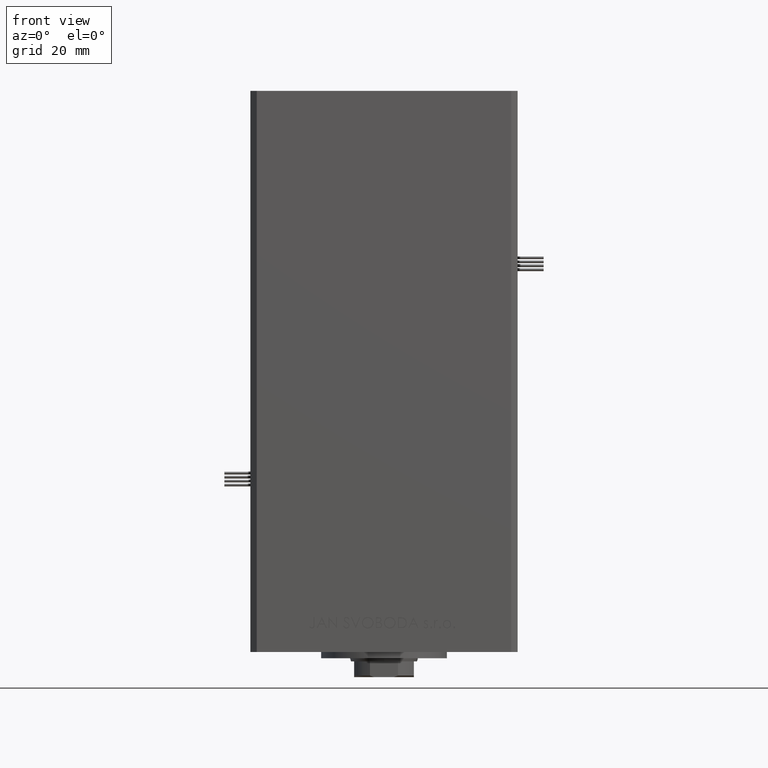
[diagram: clean part render]
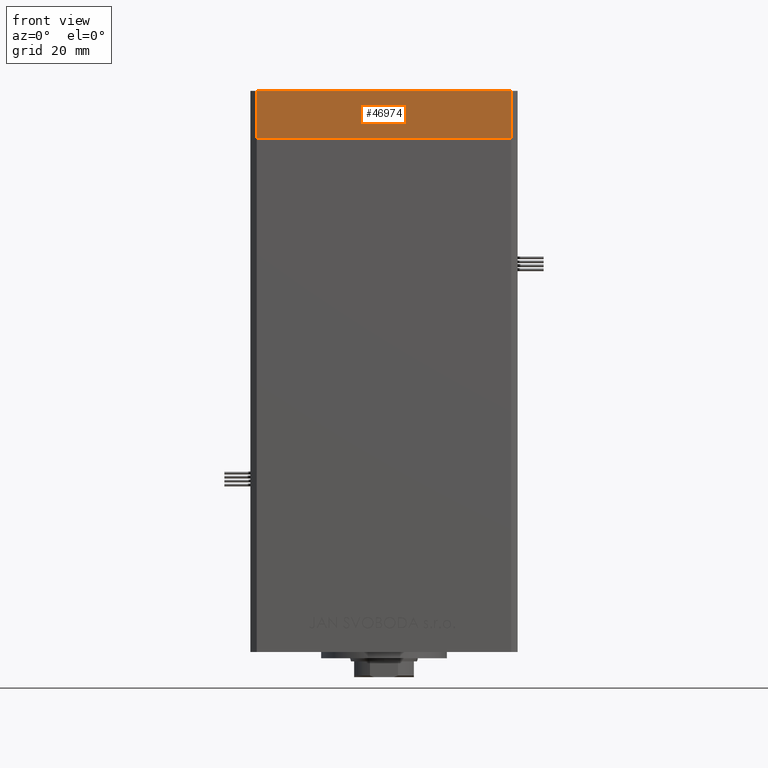
[diagram: same view with one face highlighted and labeled with its STEP entity id]
A machine part, front view. The second image highlights one B-rep face of the part: STEP entity #46974.
In plain terms, the highlighted planar face has unit normal (0, -1, 0).
Its self-contained STEP definition (entity closure, byte-faithful):
#2114 = LINE ( 'NONE', #48671, #10992 ) ;
#2366 = VERTEX_POINT ( 'NONE', #6710 ) ;
#4739 = CARTESIAN_POINT ( 'NONE',  ( 40.50000000000000000, -37.50000000000000711, 0.000000000000000000 ) ) ;
#6710 = CARTESIAN_POINT ( 'NONE',  ( -40.49999999999999289, -37.50000000000002132, -15.00000000000000000 ) ) ;
#7722 = VECTOR ( 'NONE', #39262, 1000.000000000000000 ) ;
#10992 = VECTOR ( 'NONE', #12855, 1000.000000000000000 ) ;
#11541 = LINE ( 'NONE', #23305, #7722 ) ;
#12855 = DIRECTION ( 'NONE',  ( 0.000000000000000000, 0.000000000000000000, 1.000000000000000000 ) ) ;
#14141 = ORIENTED_EDGE ( 'NONE', *, *, #19444, .F. ) ;
#16214 = EDGE_CURVE ( 'NONE', #32908, #38269, #2114, .T. ) ;
#17043 = CARTESIAN_POINT ( 'NONE',  ( -40.49999999999999289, -37.50000000000002132, -15.00000000000000000 ) ) ;
#17068 = DIRECTION ( 'NONE',  ( 0.000000000000000000, 0.000000000000000000, 1.000000000000000000 ) ) ;
#19444 = EDGE_CURVE ( 'NONE', #44101, #38269, #11541, .T. ) ;
#20969 = LINE ( 'NONE', #17043, #50100 ) ;
#22182 = EDGE_CURVE ( 'NONE', #2366, #44101, #30787, .T. ) ;
#23305 = CARTESIAN_POINT ( 'NONE',  ( -40.49999999999999289, -37.50000000000002132, 0.000000000000000000 ) ) ;
#25071 = ORIENTED_EDGE ( 'NONE', *, *, #39882, .T. ) ;
#26933 = CARTESIAN_POINT ( 'NONE',  ( -40.49999999999999289, -37.50000000000002132, 0.000000000000000000 ) ) ;
#30787 = LINE ( 'NONE', #46702, #35255 ) ;
#32908 = VERTEX_POINT ( 'NONE', #35682 ) ;
#35255 = VECTOR ( 'NONE', #17068, 1000.000000000000000 ) ;
#35342 = PLANE ( 'NONE',  #47692 ) ;
#35682 = CARTESIAN_POINT ( 'NONE',  ( 40.50000000000000000, -37.50000000000000711, -15.00000000000000000 ) ) ;
#36422 = ORIENTED_EDGE ( 'NONE', *, *, #22182, .F. ) ;
#38269 = VERTEX_POINT ( 'NONE', #4739 ) ;
#38990 = DIRECTION ( 'NONE',  ( 1.000000000000000000, 1.713307136767217096E-16, 0.000000000000000000 ) ) ;
#39262 = DIRECTION ( 'NONE',  ( 1.000000000000000000, 1.713307136767217096E-16, 0.000000000000000000 ) ) ;
#39882 = EDGE_CURVE ( 'NONE', #2366, #32908, #20969, .T. ) ;
#42910 = FACE_OUTER_BOUND ( 'NONE', #45917, .T. ) ;
#43417 = DIRECTION ( 'NONE',  ( 1.713307136767217096E-16, -1.000000000000000000, 0.000000000000000000 ) ) ;
#44101 = VERTEX_POINT ( 'NONE', #26933 ) ;
#45008 = DIRECTION ( 'NONE',  ( 1.000000000000000000, 1.713307136767217096E-16, 0.000000000000000000 ) ) ;
#45917 = EDGE_LOOP ( 'NONE', ( #14141, #36422, #25071, #51377 ) ) ;
#46702 = CARTESIAN_POINT ( 'NONE',  ( -40.49999999999999289, -37.50000000000002132, -15.00000000000000000 ) ) ;
#46974 = ADVANCED_FACE ( 'NONE', ( #42910 ), #35342, .T. ) ;
#47692 = AXIS2_PLACEMENT_3D ( 'NONE', #50756, #43417, #38990 ) ;
#48671 = CARTESIAN_POINT ( 'NONE',  ( 40.50000000000000000, -37.50000000000000711, -15.00000000000000000 ) ) ;
#50100 = VECTOR ( 'NONE', #45008, 1000.000000000000000 ) ;
#50756 = CARTESIAN_POINT ( 'NONE',  ( -40.49999999999999289, -37.50000000000002132, -15.00000000000000000 ) ) ;
#51377 = ORIENTED_EDGE ( 'NONE', *, *, #16214, .T. ) ;